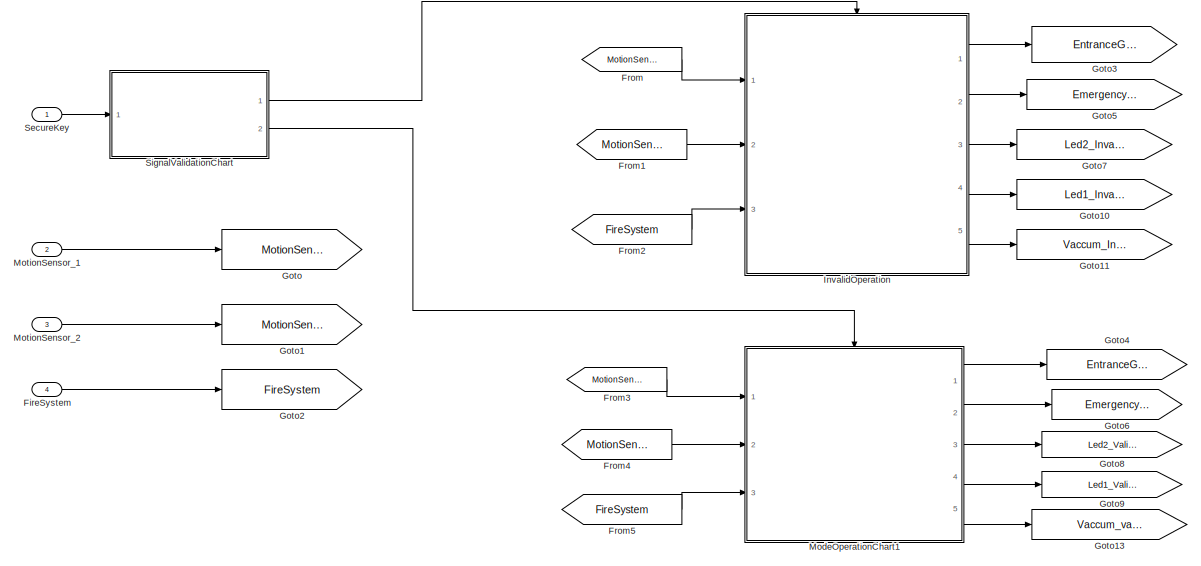
[diagram: root canvas - part 1/2, center side, full height]
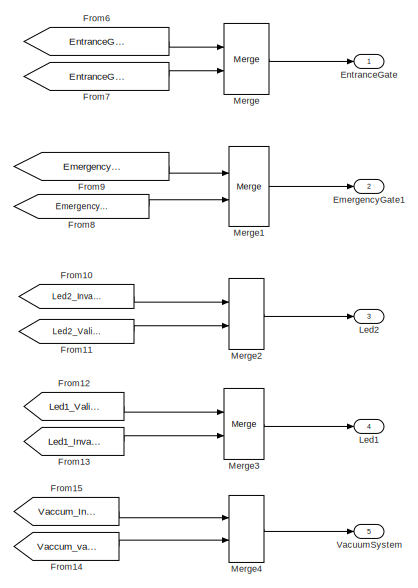
[diagram: root canvas - part 2/2, right side, full height]
MODEL slx_aee8c0af3eec
KIND model
CONFIG AbsTol = auto
CONFIG FixedStep = auto
CONFIG MaxStep = auto
CONFIG MinStep = auto
CONFIG RelTol = 1e-3
CONFIG SampleTimeConstraint = Unconstrained
CONFIG Solver = VariableStepAuto
CONFIG SolverMode = Auto
CONFIG SolverName = VariableStepAuto
CONFIG StartTime = 0.0
CONFIG StopTime = 10.0
BLOCK [Outport] EmergencyGate1
  IconDisplay = Port number
  Port = 2
BLOCK [Outport] EntranceGate
  IconDisplay = Port number
BLOCK [Inport] FireSystem
  IconDisplay = Port number
  Port = 4
BLOCK [From] From
  GotoTag = MotionSensor_1
BLOCK [From] From1
  GotoTag = MotionSensor_2
BLOCK [From] From10
  GotoTag = Led2_InvalidChart
BLOCK [From] From11
  GotoTag = Led2_ValidChart
BLOCK [From] From12
  GotoTag = Led1_ValidChart
BLOCK [From] From13
  GotoTag = Led1_InvalidChart
BLOCK [From] From14
  GotoTag = Vaccum_validChart
BLOCK [From] From15
  GotoTag = Vaccum_InvalidChart
BLOCK [From] From2
  GotoTag = FireSystem
BLOCK [From] From3
  GotoTag = MotionSensor_1
BLOCK [From] From4
  GotoTag = MotionSensor_2
BLOCK [From] From5
  GotoTag = FireSystem
BLOCK [From] From6
  GotoTag = EntranceGate_InvalidChart
BLOCK [From] From7
  GotoTag = EntranceGate_validChart
BLOCK [From] From8
  GotoTag = EmergencyGate_validChart
BLOCK [From] From9
  GotoTag = EmergencyGate_InvalidChart
BLOCK [Goto] Goto
  GotoTag = MotionSensor_1
BLOCK [Goto] Goto1
  GotoTag = MotionSensor_2
BLOCK [Goto] Goto10
  GotoTag = Led1_InvalidChart
BLOCK [Goto] Goto11
  GotoTag = Vaccum_InvalidChart
BLOCK [Goto] Goto13
  GotoTag = Vaccum_validChart
BLOCK [Goto] Goto2
  GotoTag = FireSystem
BLOCK [Goto] Goto3
  GotoTag = EntranceGate_InvalidChart
BLOCK [Goto] Goto4
  GotoTag = EntranceGate_validChart
BLOCK [Goto] Goto5
  GotoTag = EmergencyGate_InvalidChart
BLOCK [Goto] Goto6
  GotoTag = EmergencyGate_validChart
BLOCK [Goto] Goto7
  GotoTag = Led2_InvalidChart
BLOCK [Goto] Goto8
  GotoTag = Led2_ValidChart
BLOCK [Goto] Goto9
  GotoTag = Led1_ValidChart
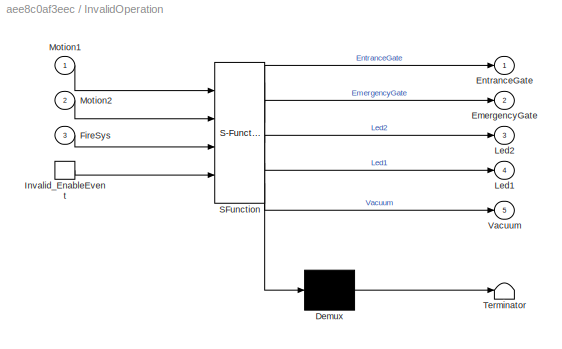
BLOCK [SubSystem] InvalidOperation
  ErrorFcn = Stateflow.Translate.translate
  PermitHierarchicalResolution = ExplicitOnly
  Ports = [3, 5, 0, 1]
  RequestExecContextInheritance = off
  SFBlockType = Chart
  TreatAsAtomicUnit = on
  Variant = off
BLOCK [Demux] InvalidOperation/ Demux 
  Outputs = 1
  Ports = [1, 1]
BLOCK [S-Function] InvalidOperation/ SFunction 
  EnableBusSupport = on
  FunctionName = sf_sfun
  PortCounts = [4 6]
  Ports = [4, 6]
  SFunctionDeploymentMode = off
  Tag = Stateflow S-Function SecureRoom_Event 1
BLOCK [Terminator] InvalidOperation/ Terminator 
BLOCK [Outport] InvalidOperation/EmergencyGate
  IconDisplay = Port number
  Port = 2
BLOCK [Outport] InvalidOperation/EntranceGate
  IconDisplay = Port number
BLOCK [Inport] InvalidOperation/FireSys
  IconDisplay = Port number
  Port = 3
BLOCK [TriggerPort] InvalidOperation/Invalid_EnableEvent
  Ports = [0, 1]
  ShowOutputPort = on
  StatesWhenEnabling = held
  TriggerType = function-call
  VariantControl = Variant
BLOCK [Outport] InvalidOperation/Led1
  IconDisplay = Port number
  Port = 4
BLOCK [Outport] InvalidOperation/Led2
  IconDisplay = Port number
  Port = 3
BLOCK [Inport] InvalidOperation/Motion1
  IconDisplay = Port number
BLOCK [Inport] InvalidOperation/Motion2
  IconDisplay = Port number
  Port = 2
BLOCK [Outport] InvalidOperation/Vacuum
  IconDisplay = Port number
  Port = 5
BLOCK [Outport] Led1 
  IconDisplay = Port number
  Port = 4
BLOCK [Outport] Led2
  IconDisplay = Port number
  Port = 3
BLOCK [Merge] Merge
  Ports = [2, 1]
BLOCK [Merge] Merge1
  Ports = [2, 1]
BLOCK [Merge] Merge2
  Ports = [2, 1]
BLOCK [Merge] Merge3
  Ports = [2, 1]
BLOCK [Merge] Merge4
  Ports = [2, 1]
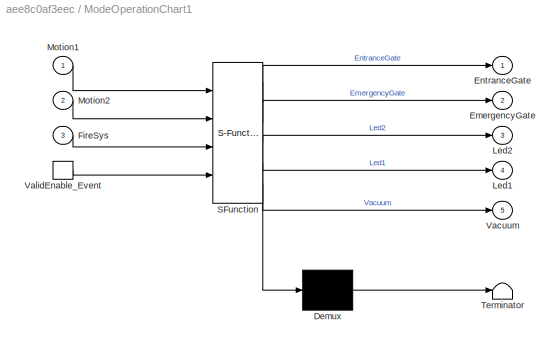
BLOCK [SubSystem] ModeOperationChart1
  ErrorFcn = Stateflow.Translate.translate
  PermitHierarchicalResolution = ExplicitOnly
  Ports = [3, 5, 0, 1]
  RequestExecContextInheritance = off
  SFBlockType = Chart
  TreatAsAtomicUnit = on
  Variant = off
BLOCK [Demux] ModeOperationChart1/ Demux 
  Outputs = 1
  Ports = [1, 1]
BLOCK [S-Function] ModeOperationChart1/ SFunction 
  EnableBusSupport = on
  FunctionName = sf_sfun
  PortCounts = [4 6]
  Ports = [4, 6]
  SFunctionDeploymentMode = off
  Tag = Stateflow S-Function SecureRoom_Event 2
BLOCK [Terminator] ModeOperationChart1/ Terminator 
BLOCK [Outport] ModeOperationChart1/EmergencyGate
  IconDisplay = Port number
  Port = 2
BLOCK [Outport] ModeOperationChart1/EntranceGate
  IconDisplay = Port number
BLOCK [Inport] ModeOperationChart1/FireSys
  IconDisplay = Port number
  Port = 3
BLOCK [Outport] ModeOperationChart1/Led1
  IconDisplay = Port number
  Port = 4
BLOCK [Outport] ModeOperationChart1/Led2
  IconDisplay = Port number
  Port = 3
BLOCK [Inport] ModeOperationChart1/Motion1
  IconDisplay = Port number
BLOCK [Inport] ModeOperationChart1/Motion2
  IconDisplay = Port number
  Port = 2
BLOCK [Outport] ModeOperationChart1/Vacuum
  IconDisplay = Port number
  Port = 5
BLOCK [TriggerPort] ModeOperationChart1/ValidEnable_Event
  Ports = [0, 1]
  ShowOutputPort = on
  StatesWhenEnabling = held
  TriggerType = function-call
  VariantControl = Variant
BLOCK [Inport] MotionSensor_1
  IconDisplay = Port number
  Port = 2
BLOCK [Inport] MotionSensor_2
  IconDisplay = Port number
  Port = 3
BLOCK [Inport] SecureKey
  IconDisplay = Port number
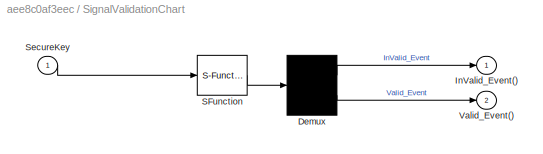
BLOCK [SubSystem] SignalValidationChart
  ErrorFcn = Stateflow.Translate.translate
  PermitHierarchicalResolution = ExplicitOnly
  Ports = [1, 2]
  RequestExecContextInheritance = off
  SFBlockType = Chart
  TreatAsAtomicUnit = on
  Variant = off
BLOCK [Demux] SignalValidationChart/ Demux 
  Outputs = 2
  Ports = [1, 2]
BLOCK [S-Function] SignalValidationChart/ SFunction 
  EnableBusSupport = on
  FunctionName = sf_sfun
  PortCounts = [1 1]
  Ports = [1, 1]
  SFunctionDeploymentMode = off
  Tag = Stateflow S-Function SecureRoom_Event 3
BLOCK [Outport] SignalValidationChart/InValid_Event()
  IconDisplay = Port number
BLOCK [Inport] SignalValidationChart/SecureKey
  IconDisplay = Port number
BLOCK [Outport] SignalValidationChart/Valid_Event()
  IconDisplay = Port number
  Port = 2
BLOCK [Outport] VacuumSystem
  IconDisplay = Port number
  Port = 5
LINE FireSystem:1 -> Goto2:1
LINE From10:1 -> Merge2:1
LINE From11:1 -> Merge2:2
LINE From12:1 -> Merge3:1
LINE From13:1 -> Merge3:2
LINE From14:1 -> Merge4:2
LINE From15:1 -> Merge4:1
LINE From1:1 -> InvalidOperation:2
LINE From2:1 -> InvalidOperation:3
LINE From3:1 -> ModeOperationChart1:1
LINE From4:1 -> ModeOperationChart1:2
LINE From5:1 -> ModeOperationChart1:3
LINE From6:1 -> Merge:1
LINE From7:1 -> Merge:2
LINE From8:1 -> Merge1:2
LINE From9:1 -> Merge1:1
LINE From:1 -> InvalidOperation:1
LINE InvalidOperation:1 -> Goto3:1
LINE InvalidOperation:2 -> Goto5:1
LINE InvalidOperation:3 -> Goto7:1
LINE InvalidOperation:4 -> Goto10:1
LINE InvalidOperation:5 -> Goto11:1
LINE Merge1:1 -> EmergencyGate1:1
LINE Merge2:1 -> Led2:1
LINE Merge3:1 -> Led1 :1
LINE Merge4:1 -> VacuumSystem:1
LINE Merge:1 -> EntranceGate:1
LINE ModeOperationChart1:1 -> Goto4:1
LINE ModeOperationChart1:2 -> Goto6:1
LINE ModeOperationChart1:3 -> Goto8:1
LINE ModeOperationChart1:4 -> Goto9:1
LINE ModeOperationChart1:5 -> Goto13:1
LINE MotionSensor_1:1 -> Goto:1
LINE MotionSensor_2:1 -> Goto1:1
LINE SecureKey:1 -> SignalValidationChart:1
LINE SignalValidationChart:1 -> InvalidOperation:trigger
LINE SignalValidationChart:2 -> ModeOperationChart1:trigger
CHART InvalidOperation states=1 transitions=1
  STATE_LABEL 'Invalid\nen:\nEntranceGate=0;\nEmergencyGate=0;\nLed1=0;\nLed2=0;\nVacuum=0;\ndu:\nex:'
CHART ModeOperationChart1 states=4 transitions=8
  STATE_LABEL 'Room2\nen:\nLed1=0;\nLed2=1;\nVacuum=0;\nEntranceGate=1;\nEmergencyGate=1;\ndu:\nex:'
  STATE_LABEL 'Room1\nen:\nLed1=1;\nLed2=0;\nVacuum=0;\nEntranceGate=1;\nEmergencyGate=1;\ndu:\nex:'
  STATE_LABEL 'Emergency\nen:\nLed1=1;\nLed2=1;\nVacuum=1;\ndu:\nEmergencyCounter++;\nex:'
  STATE_LABEL 'SystemLocked\nen:\nEntranceGate=0;\nEmergencyGate=0;\ndu:\nex:'
CHART SignalValidationChart states=1 transitions=23
  STATE_LABEL 'The added condition of "InvalidCounter<3"\nto prevent counter increment if it reach value = 3'
